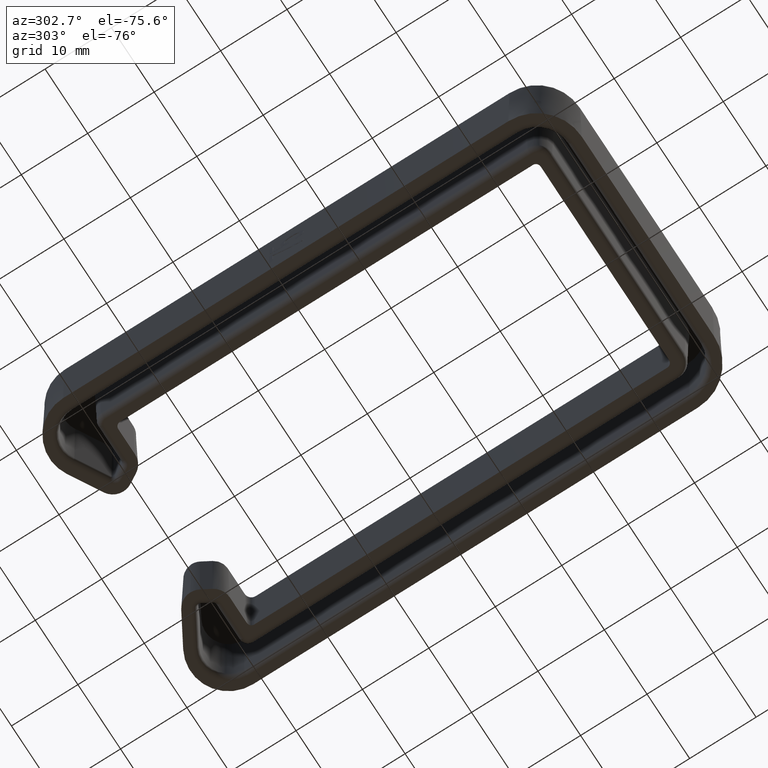
[diagram: clean part render]
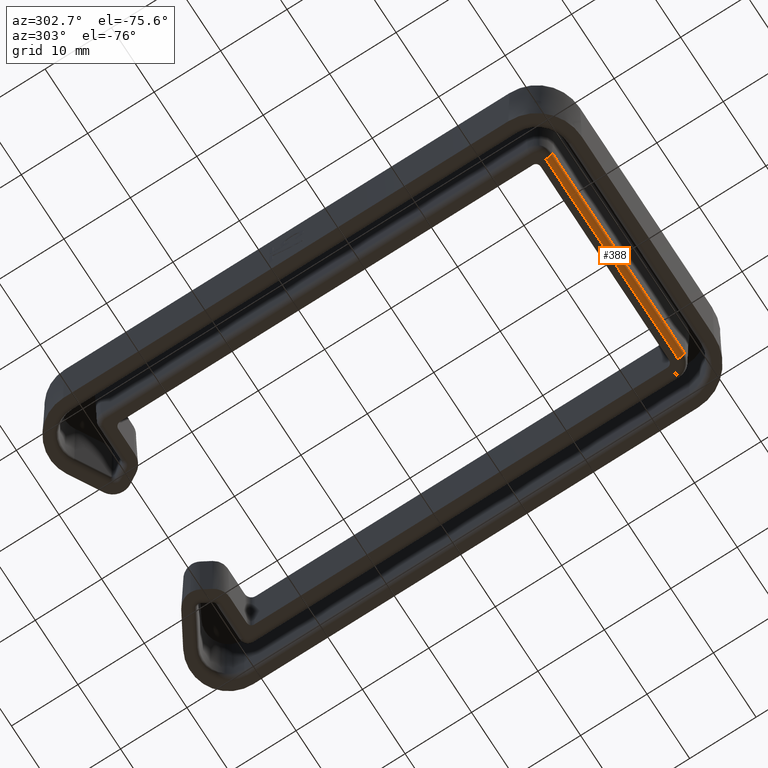
[diagram: same view with one face highlighted and labeled with its STEP entity id]
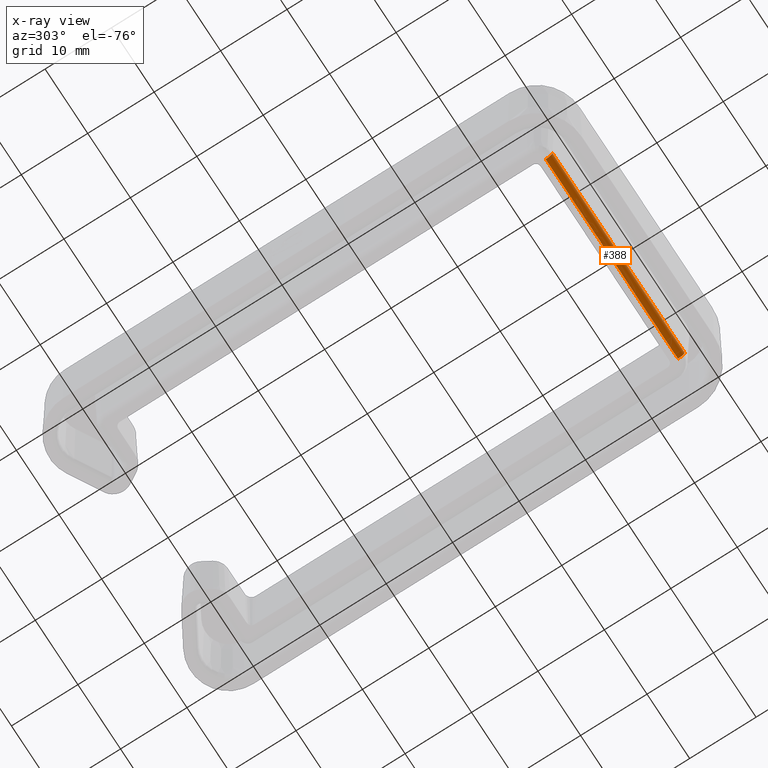
[diagram: x-ray of the same camera — body ghosted, the highlighted face saturated]
A machine part, auxiliary view. The second image highlights one B-rep face of the part: STEP entity #388.
The next image is the same camera in x-ray: the body ghosted, the highlighted face saturated — about 0% of this face is hidden behind the body in this view.
In plain terms, the highlighted cylindrical surface (edge-blend (fillet) strip) has radius 1 mm, axis along (1, 0, 0).
Its self-contained STEP definition (entity closure, byte-faithful):
#388=ADVANCED_FACE('',(#846),#847,.T.);
#846=FACE_OUTER_BOUND('',#1367,.T.);
#847=CYLINDRICAL_SURFACE('',#1368,1.0);
#1367=EDGE_LOOP('',(#3524,#3525,#3526,#3527));
#1368=AXIS2_PLACEMENT_3D('',#3528,#3529,#3530);
#3524=ORIENTED_EDGE('',*,*,#4122,.T.);
#3525=ORIENTED_EDGE('',*,*,#4073,.F.);
#3526=ORIENTED_EDGE('',*,*,#4123,.F.);
#3527=ORIENTED_EDGE('',*,*,#3923,.F.);
#3528=CARTESIAN_POINT('',(15.0499999999975,3.19452323705149,1.0));
#3529=DIRECTION('',(1.0,8.32667268468864E-13,0.0));
#3530=DIRECTION('',(8.32667268468864E-13,-1.0,0.0));
#3923=EDGE_CURVE('',#4731,#4733,#4734,.F.);
#4073=EDGE_CURVE('',#4964,#4956,#4967,.F.);
#4122=EDGE_CURVE('',#4731,#4956,#5038,.T.);
#4123=EDGE_CURVE('',#4733,#4964,#5039,.T.);
#4731=VERTEX_POINT('',#6804);
#4733=VERTEX_POINT('',#6806);
#4734=LINE('',#6807,#6808);
#4956=VERTEX_POINT('',#7098);
#4964=VERTEX_POINT('',#7108);
#4967=LINE('',#7112,#7113);
#5038=CIRCLE('',#7218,1.0);
#5039=CIRCLE('',#7219,1.0);
#6804=CARTESIAN_POINT('',(15.4999999999967,3.19452323705187,0.0));
#6806=CARTESIAN_POINT('',(-15.5000000000018,3.19452323702605,0.0));
#6807=CARTESIAN_POINT('',(-15.5000000000018,3.19452323702605,0.0));
#6808=VECTOR('',#7541,1000.0);
#7098=CARTESIAN_POINT('',(15.4999999999976,2.19467554189548,0.982547593562687));
#7108=CARTESIAN_POINT('',(-15.500000000001,2.19467554186966,0.982547593562717));
#7112=CARTESIAN_POINT('',(15.4999999999976,2.19467554189547,0.982547593562716));
#7113=VECTOR('',#7847,1000.0);
#7218=AXIS2_PLACEMENT_3D('',#7924,#7925,#7926);
#7219=AXIS2_PLACEMENT_3D('',#7927,#7928,#7929);
#7541=DIRECTION('',(1.0,8.32667268468864E-13,0.0));
#7847=DIRECTION('',(-1.0,-8.32667268468864E-13,3.15496288517813E-30));
#7924=CARTESIAN_POINT('',(15.4999999999967,3.19452323705187,1.0));
#7925=DIRECTION('',(-1.0,-8.32794107045096E-13,0.0));
#7926=DIRECTION('',(8.32794107045096E-13,-1.0,0.0));
#7927=CARTESIAN_POINT('',(-15.5000000000018,3.19452323702605,1.0));
#7928=DIRECTION('',(-1.0,-8.32794107045099E-13,0.0));
#7929=DIRECTION('',(8.32794107045099E-13,-1.0,0.0));